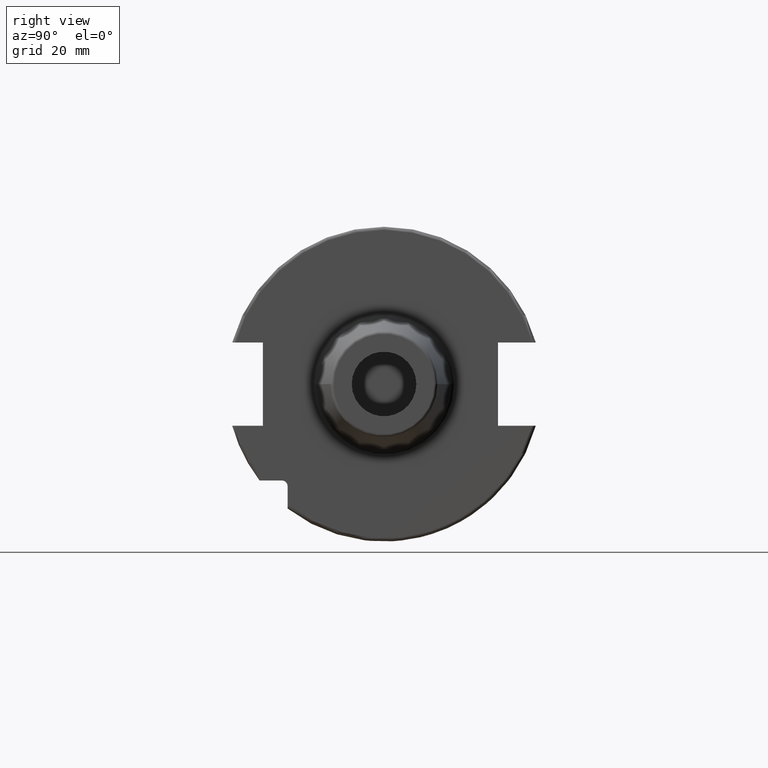
[diagram: clean part render]
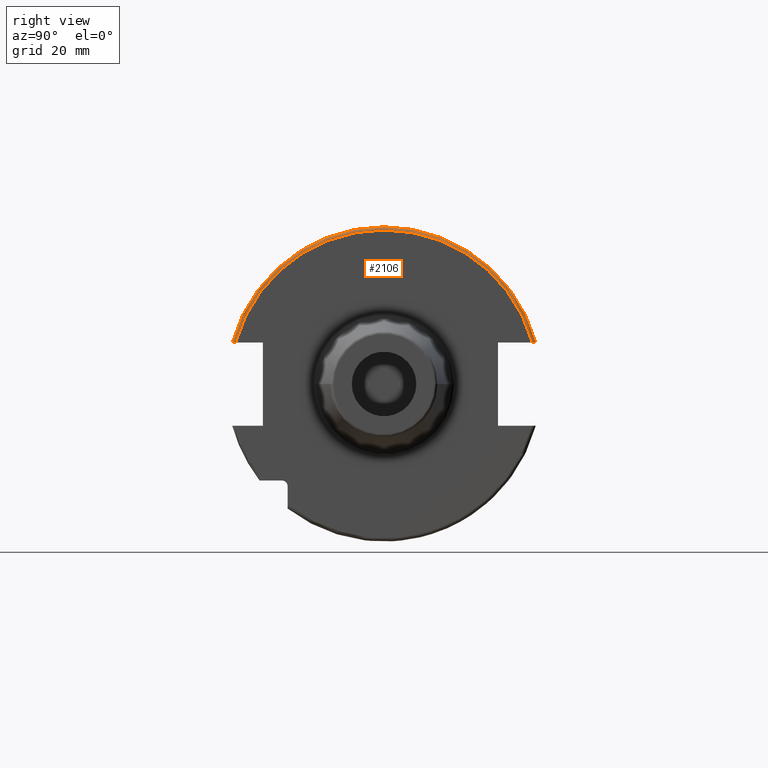
[diagram: same view with one face highlighted and labeled with its STEP entity id]
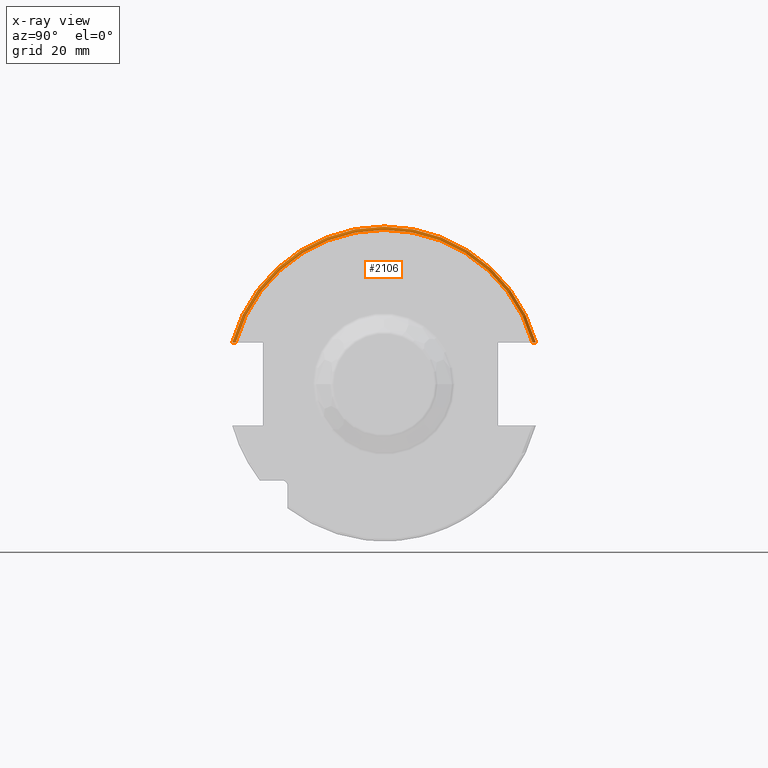
[diagram: x-ray of the same camera — body ghosted, the highlighted face saturated]
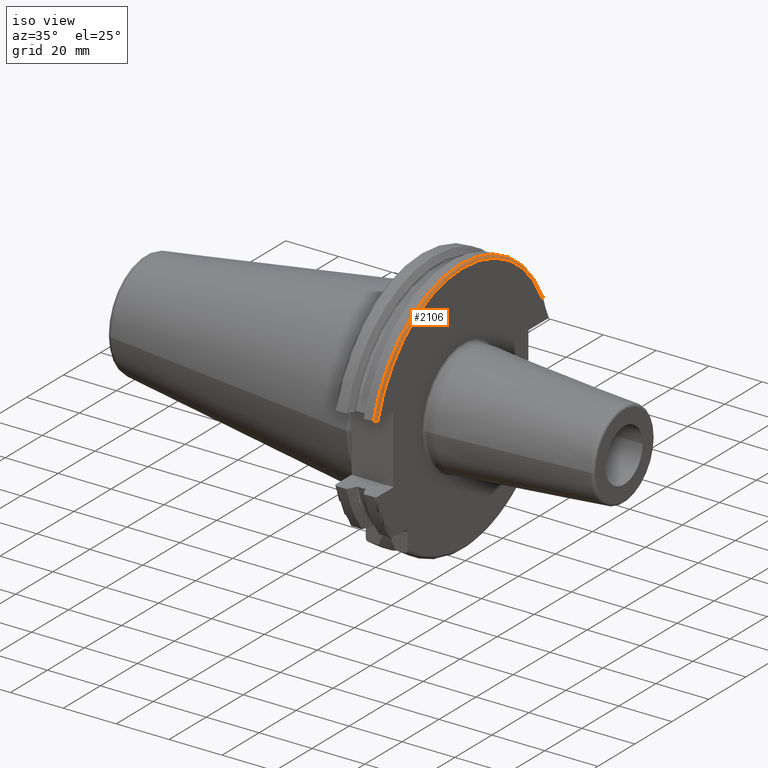
[diagram: same view with one face highlighted and labeled with its STEP entity id]
A machine part, right view. The second image highlights one B-rep face of the part: STEP entity #2106.
The next image is the same camera in x-ray: the body ghosted, the highlighted face saturated — about 0% of this face is hidden behind the body in this view.
A second angle (iso view) of the same face is appended — the face is thin or edge-on in the first view.
In plain terms, the highlighted toroidal blend (fillet) surface has major radius 47.7375 mm and minor (blend) radius 1 mm.
Its self-contained STEP definition (entity closure, byte-faithful):
#493=CARTESIAN_POINT('',(1.805E1,0.E0,0.E0));
#494=DIRECTION('',(1.E0,0.E0,0.E0));
#495=DIRECTION('',(0.E0,9.643354064066E-1,2.646832521159E-1));
#496=AXIS2_PLACEMENT_3D('',#493,#494,#495);
#534=CARTESIAN_POINT('',(1.905E1,4.596149373389E1,1.29E1));
#535=CARTESIAN_POINT('',(1.905E1,4.604025341545E1,1.29E1));
#536=CARTESIAN_POINT('',(1.903319704314E1,4.619325673207E1,1.29E1));
#537=CARTESIAN_POINT('',(1.895943574721E1,4.641382557540E1,1.29E1));
#538=CARTESIAN_POINT('',(1.884029019608E1,4.661163569902E1,1.29E1));
#539=CARTESIAN_POINT('',(1.868162992187E1,4.677744958982E1,1.29E1));
#540=CARTESIAN_POINT('',(1.849033887272E1,4.690323680095E1,1.29E1));
#541=CARTESIAN_POINT('',(1.827565953653E1,4.698148434228E1,1.29E1));
#542=CARTESIAN_POINT('',(1.812673203795E1,4.699929686974E1,1.29E1));
#543=CARTESIAN_POINT('',(1.805E1,4.699929686974E1,1.29E1));
#545=CARTESIAN_POINT('',(1.905E1,0.E0,0.E0));
#546=DIRECTION('',(1.E0,0.E0,0.E0));
#547=DIRECTION('',(0.E0,9.627964123359E-1,2.702278083268E-1));
#548=AXIS2_PLACEMENT_3D('',#545,#546,#547);
#550=CARTESIAN_POINT('',(1.805E1,-4.699929686974E1,1.29E1));
#551=CARTESIAN_POINT('',(1.812676342368E1,-4.699929686974E1,1.29E1));
#552=CARTESIAN_POINT('',(1.827575329770E1,-4.698147245914E1,1.29E1));
#553=CARTESIAN_POINT('',(1.849056832427E1,-4.690313408822E1,1.29E1));
#554=CARTESIAN_POINT('',(1.868190698842E1,-4.677722381974E1,1.29E1));
#555=CARTESIAN_POINT('',(1.884050497536E1,-4.661134760606E1,1.29E1));
#556=CARTESIAN_POINT('',(1.895953365851E1,-4.641358752589E1,1.29E1));
#557=CARTESIAN_POINT('',(1.903320906929E1,-4.619315655817E1,1.29E1));
#558=CARTESIAN_POINT('',(1.905E1,-4.604021961607E1,1.29E1));
#559=CARTESIAN_POINT('',(1.905E1,-4.596149373389E1,1.29E1));
#1328=CARTESIAN_POINT('',(1.905E1,4.596149373389E1,1.29E1));
#1330=VERTEX_POINT('',#1328);
#1342=CARTESIAN_POINT('',(1.905E1,-4.596149373389E1,1.29E1));
#1343=VERTEX_POINT('',#1342);
#1346=CARTESIAN_POINT('',(1.805E1,4.699929686974E1,1.29E1));
#1347=VERTEX_POINT('',#1346);
#1350=CARTESIAN_POINT('',(1.805E1,-4.699929686974E1,1.29E1));
#1351=VERTEX_POINT('',#1350);
#2095=CARTESIAN_POINT('',(1.805E1,0.E0,0.E0));
#2096=DIRECTION('',(1.E0,0.E0,0.E0));
#2097=DIRECTION('',(0.E0,-1.E0,0.E0));
#2098=AXIS2_PLACEMENT_3D('',#2095,#2096,#2097);
#2099=TOROIDAL_SURFACE('',#2098,4.77375E1,1.E0);
#2100=ORIENTED_EDGE('',*,*,#1900,.F.);
#2101=ORIENTED_EDGE('',*,*,#1647,.T.);
#2102=ORIENTED_EDGE('',*,*,#1949,.F.);
#2103=ORIENTED_EDGE('',*,*,#2076,.F.);
#2104=EDGE_LOOP('',(#2100,#2101,#2102,#2103));
#2105=FACE_OUTER_BOUND('',#2104,.F.);
#2106=ADVANCED_FACE('',(#2105),#2099,.T.);
#497=CIRCLE('',#496,4.87375E1);
#544=B_SPLINE_CURVE_WITH_KNOTS('',3,(#534,#535,#536,#537,#538,#539,#540,#541,
#542,#543),.UNSPECIFIED.,.F.,.F.,(4,1,1,1,1,1,1,4),(0.E0,1.428571428571E-1,
2.857142857143E-1,4.285714285714E-1,5.714285714286E-1,7.142857142857E-1,
8.571428571429E-1,1.E0),.UNSPECIFIED.);
#549=CIRCLE('',#548,4.77375E1);
#560=B_SPLINE_CURVE_WITH_KNOTS('',3,(#550,#551,#552,#553,#554,#555,#556,#557,
#558,#559),.UNSPECIFIED.,.F.,.F.,(4,1,1,1,1,1,1,4),(0.E0,1.428571428571E-1,
2.857142857143E-1,4.285714285714E-1,5.714285714286E-1,7.142857142857E-1,
8.571428571429E-1,1.E0),.UNSPECIFIED.);
#1647=EDGE_CURVE('',#1330,#1343,#549,.T.);
#1900=EDGE_CURVE('',#1330,#1347,#544,.T.);
#1949=EDGE_CURVE('',#1351,#1343,#560,.T.);
#2076=EDGE_CURVE('',#1347,#1351,#497,.T.);